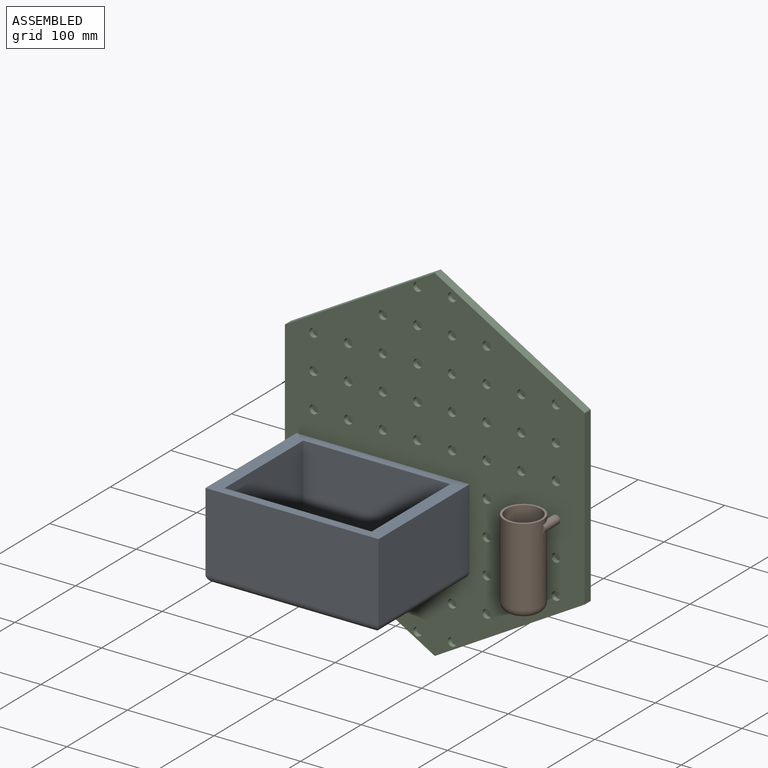
[diagram: assembled view]
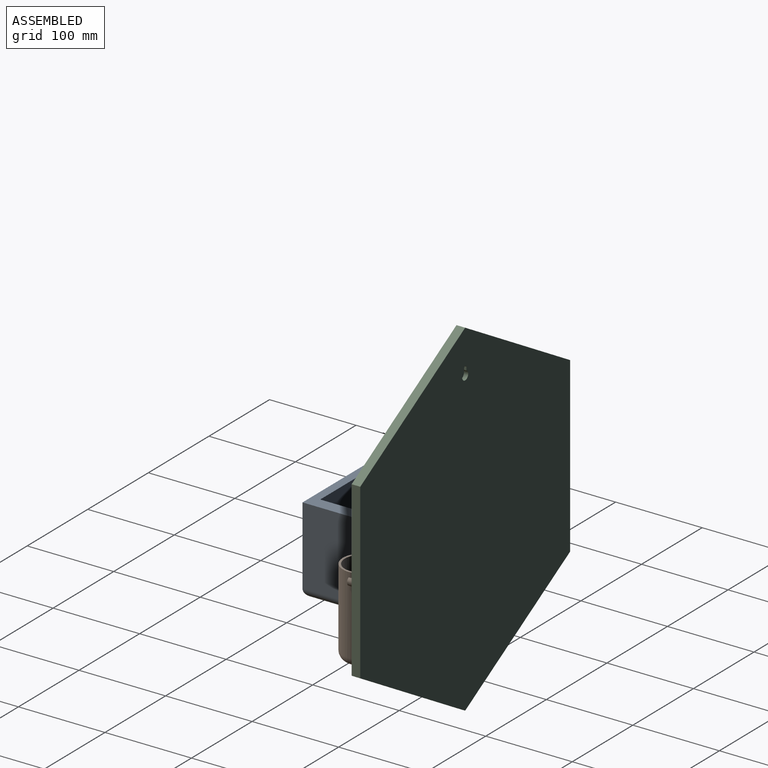
[diagram: assembled view, second angle]
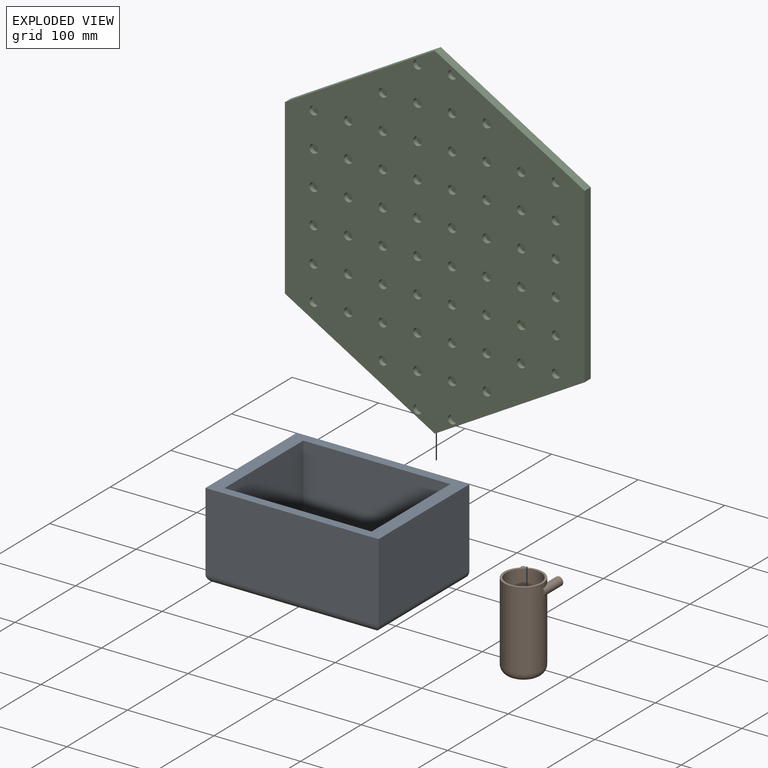
[diagram: exploded view]
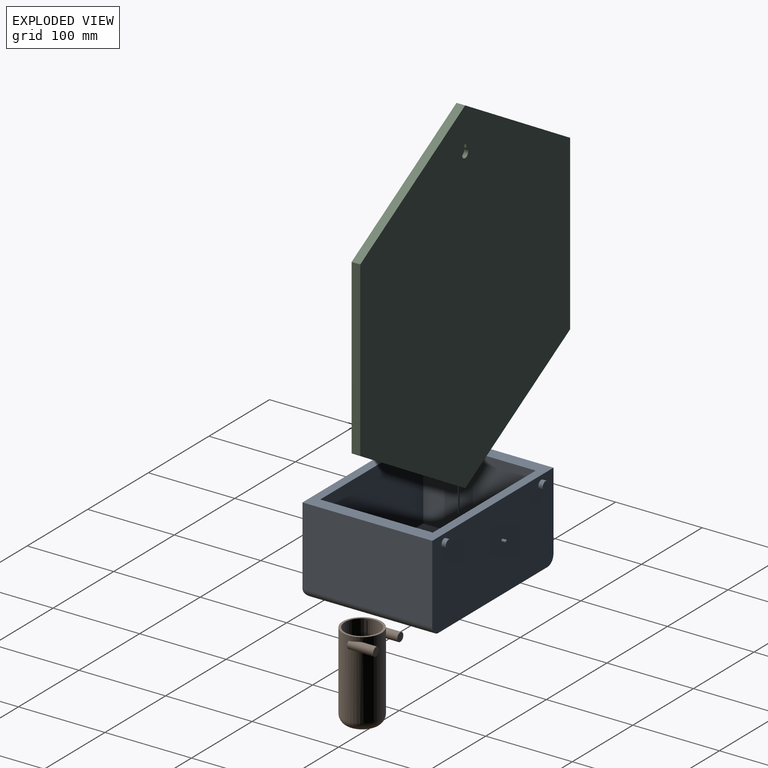
[diagram: exploded view, second angle]
ASSEMBLY  parts=3 mates=6
PART A: 20 faces, bbox 200x155x100 mm
  f0: plane 150x90mm, normal (-1,0,0), area 13500mm2, adj f3,f4,f5,f8
  f1: plane 180x140mm, normal (0,0,-1), area 25200mm2, adj f5,f6,f7,f8
  f2: plane 150x90mm, normal (1,0,0), area 13500mm2, adj f3,f4,f5,f6
  f3: plane 200x150mm, normal (0,0,1), area 7900mm2, adj f0,f2,f4,f5,f15,f16,f17,f18
  f4: plane 200x90mm, normal (0,-1,0), area 18000mm2, adj f0,f2,f3,f7
  f5: plane 200x100mm, normal (0,1,0), area 19791.4mm2, adj f0,f1,f2,f3,f6,f8,f9,f11
  f6: cylinder r=10mm len=150mm, axis (0,1,0), area 2299.1mm2, adj f1,f2,f5,f7
  f7: cylinder r=10mm len=200mm, axis (-1,0,0), area 3027.4mm2, adj f1,f4,f6,f8
  f8: cylinder r=10mm len=150mm, axis (0,1,0), area 2299.1mm2, adj f0,f1,f5,f7
  f9: cylinder r=5mm len=10mm, axis (0,-1,0), area 157.1mm2, adj f5,f10
  f10: plane 10x10mm, normal (0,1,0), area 78.5mm2, adj f9
  f11: cylinder r=1.65mm len=5mm, axis (0,-1,0), area 51.9mm2, adj f5,f12
  f12: plane 3.3x3.3mm, normal (0,1,0), area 8.6mm2, adj f11
  f13: cylinder r=5mm len=10mm, axis (0,-1,0), area 157.1mm2, adj f5,f14
  f14: plane 10x10mm, normal (0,1,0), area 78.5mm2, adj f13
  f15: plane 130x90mm, normal (-1,0,0), area 11700mm2, adj f3,f16,f18,f19
  f16: plane 170x90mm, normal (0,1,0), area 15300mm2, adj f3,f15,f17,f19
  f17: plane 130x90mm, normal (1,0,0), area 11700mm2, adj f3,f16,f18,f19
  f18: plane 170x90mm, normal (0,-1,0), area 15300mm2, adj f3,f15,f17,f19
  f19: plane 170x130mm, normal (0,0,1), area 22100mm2, adj f15,f16,f17,f18
PART B: 12 faces, bbox 50x54.4x100 mm
  f0: cylinder r=20mm len=90mm, axis (0,0,-1), area 11309.7mm2, adj f2,f4
  f1: cylinder r=22.5mm len=90mm, axis (0,0,-1), area 12391.1mm2, adj f2,f5,f7,f8,f10,f11
  f2: plane 45x45mm, normal (0,0,1), area 333.8mm2, adj f0,f1
  f3: plane 25x25mm, normal (0,0,-1), area 490.9mm2, adj f5
  f4: plane 40x40mm, normal (0,0,1), area 1256.6mm2, adj f0
  f5: torus R=12.5mm, axis (0,0,1), area 1862mm2, adj f1,f3
  f6: plane 10x10mm, normal (0,-1,0), area 78.5mm2, adj f8
  f7: plane 8.66x2.5mm, normal (0,1,0), area 15.4mm2, adj f1,f8
  f8: cylinder r=5mm len=30mm, axis (0,1,0), area 674.9mm2, adj f1,f6,f7
  f9: plane 10x10mm, normal (0,-1,0), area 78.5mm2, adj f11
  f10: plane 8.66x2.5mm, normal (0,1,0), area 15.4mm2, adj f1,f11
  f11: cylinder r=5mm len=30mm, axis (0,1,0), area 674.9mm2, adj f1,f9,f10
PART C: 133 faces, bbox 346.4x10x400 mm
  f0: plane 173.21x100mm, normal (0.5,0,0.87), area 2000mm2, adj f1,f5,f6,f7
  f1: plane 173.21x100mm, normal (-0.5,0,0.87), area 2000mm2, adj f0,f2,f6,f7
  f2: plane 200x10mm, normal (-1,0,0), area 2000mm2, adj f1,f3,f6,f7
  f3: plane 173.21x100mm, normal (-0.5,0,-0.87), area 2000mm2, adj f2,f4,f6,f7
  f4: plane 173.21x100mm, normal (0.5,0,-0.87), area 2000mm2, adj f3,f5,f6,f7
  f5: plane 200x10mm, normal (1,0,0), area 2000mm2, adj f0,f4,f6,f7
  f6: plane 400x346.41mm, normal (0,-1,0), area 99210.7mm2, adj f0,f1,f2,f3,f4,f5,f13,f15
  f7: plane 400x346.41mm, normal (0,1,0), area 103825.7mm2, adj f0,f1,f2,f3,f4,f5,f8,f9
  f8: cylinder r=5mm len=10mm, axis (0,1,0), area 136.5mm2, adj f7,f9,f11,f12
  f9: plane 5x3.42mm, normal (-1,0,0), area 17.1mm2, adj f7,f8,f10,f12
  f10: cylinder r=2mm len=5mm, axis (0,1,0), area 31.4mm2, adj f7,f9,f11,f12
  f11: plane 5x3.42mm, normal (1,0,0), area 17.1mm2, adj f7,f8,f10,f12
  f12: plane 15x10mm, normal (0,1,0), area 97.4mm2, adj f8,f9,f10,f11
  f13: cylinder r=5mm len=10mm, axis (0,-1,0), area 157.1mm2, adj f6,f14
  f14: plane 10x10mm, normal (0,-1,0), area 78.5mm2, adj f13
  f15: cylinder r=5mm len=10mm, axis (0,-1,0), area 157.1mm2, adj f6,f16
  f16: plane 10x10mm, normal (0,-1,0), area 78.5mm2, adj f15
  f17: cylinder r=5mm len=10mm, axis (0,-1,0), area 157.1mm2, adj f6,f18
  f18: plane 10x10mm, normal (0,-1,0), area 78.5mm2, adj f17
  f19: cylinder r=5mm len=10mm, axis (0,-1,0), area 157.1mm2, adj f6,f20
  f20: plane 10x10mm, normal (0,-1,0), area 78.5mm2, adj f19
  f21: cylinder r=5mm len=10mm, axis (0,-1,0), area 157.1mm2, adj f6,f22
  f22: plane 10x10mm, normal (0,-1,0), area 78.5mm2, adj f21
  f23: cylinder r=5mm len=10mm, axis (0,-1,0), area 157.1mm2, adj f6,f24
  f24: plane 10x10mm, normal (0,-1,0), area 78.5mm2, adj f23
  f25: cylinder r=5mm len=10mm, axis (0,-1,0), area 157.1mm2, adj f6,f26
  f26: plane 10x10mm, normal (0,-1,0), area 78.5mm2, adj f25
  f27: cylinder r=5mm len=10mm, axis (0,-1,0), area 157.1mm2, adj f6,f28
  f28: plane 10x10mm, normal (0,-1,0), area 78.5mm2, adj f27
  f29: cylinder r=5mm len=10mm, axis (0,-1,0), area 157.1mm2, adj f6,f30
  f30: plane 10x10mm, normal (0,-1,0), area 78.5mm2, adj f29
  f31: cylinder r=5mm len=10mm, axis (0,-1,0), area 157.1mm2, adj f6,f32
  f32: plane 10x10mm, normal (0,-1,0), area 78.5mm2, adj f31
  f33: cylinder r=5mm len=10mm, axis (0,-1,0), area 157.1mm2, adj f6,f34
  f34: plane 10x10mm, normal (0,-1,0), area 78.5mm2, adj f33
  f35: cylinder r=5mm len=10mm, axis (0,-1,0), area 157.1mm2, adj f6,f36
  f36: plane 10x10mm, normal (0,-1,0), area 78.5mm2, adj f35
  f37: cylinder r=5mm len=10mm, axis (0,-1,0), area 157.1mm2, adj f6,f38
  f38: plane 10x10mm, normal (0,-1,0), area 78.5mm2, adj f37
  f39: cylinder r=5mm len=10mm, axis (0,-1,0), area 157.1mm2, adj f6,f40
  f40: plane 10x10mm, normal (0,-1,0), area 78.5mm2, adj f39
  f41: cylinder r=5mm len=10mm, axis (0,-1,0), area 157.1mm2, adj f6,f42
  f42: plane 10x10mm, normal (0,-1,0), area 78.5mm2, adj f41
  f43: cylinder r=5mm len=10mm, axis (0,-1,0), area 157.1mm2, adj f6,f44
  f44: plane 10x10mm, normal (0,-1,0), area 78.5mm2, adj f43
  f45: cylinder r=5mm len=10mm, axis (0,-1,0), area 157.1mm2, adj f6,f46
  f46: plane 10x10mm, normal (0,-1,0), area 78.5mm2, adj f45
  f47: cylinder r=5mm len=10mm, axis (0,-1,0), area 157.1mm2, adj f6,f48
  f48: plane 10x10mm, normal (0,-1,0), area 78.5mm2, adj f47
  f49: cylinder r=5mm len=10mm, axis (0,-1,0), area 157.1mm2, adj f6,f50
  f50: plane 10x10mm, normal (0,-1,0), area 78.5mm2, adj f49
  f51: cylinder r=5mm len=10mm, axis (0,-1,0), area 157.1mm2, adj f6,f52
  f52: plane 10x10mm, normal (0,-1,0), area 78.5mm2, adj f51
  f53: cylinder r=5mm len=10mm, axis (0,-1,0), area 157.1mm2, adj f6,f54
  f54: plane 10x10mm, normal (0,-1,0), area 78.5mm2, adj f53
  f55: cylinder r=5mm len=10mm, axis (0,-1,0), area 157.1mm2, adj f6,f56
  f56: plane 10x10mm, normal (0,-1,0), area 78.5mm2, adj f55
  f57: cylinder r=5mm len=10mm, axis (0,-1,0), area 157.1mm2, adj f6,f58
  f58: plane 10x10mm, normal (0,-1,0), area 78.5mm2, adj f57
  f59: cylinder r=5mm len=10mm, axis (0,-1,0), area 157.1mm2, adj f6,f60
  f60: plane 10x10mm, normal (0,-1,0), area 78.5mm2, adj f59
  f61: cylinder r=5mm len=10mm, axis (0,-1,0), area 157.1mm2, adj f6,f62
  f62: plane 10x10mm, normal (0,-1,0), area 78.5mm2, adj f61
  f63: cylinder r=5mm len=10mm, axis (0,-1,0), area 157.1mm2, adj f6,f64
  f64: plane 10x10mm, normal (0,-1,0), area 78.5mm2, adj f63
  f65: cylinder r=5mm len=10mm, axis (0,-1,0), area 157.1mm2, adj f6,f66
  f66: plane 10x10mm, normal (0,-1,0), area 78.5mm2, adj f65
  f67: cylinder r=5mm len=10mm, axis (0,-1,0), area 157.1mm2, adj f6,f68
  f68: plane 10x10mm, normal (0,-1,0), area 78.5mm2, adj f67
  f69: cylinder r=5mm len=10mm, axis (0,-1,0), area 157.1mm2, adj f6,f70
  f70: plane 10x10mm, normal (0,-1,0), area 78.5mm2, adj f69
  f71: cylinder r=5mm len=10mm, axis (0,-1,0), area 157.1mm2, adj f6,f72
  f72: plane 10x10mm, normal (0,-1,0), area 78.5mm2, adj f71
  f73: cylinder r=5mm len=10mm, axis (0,-1,0), area 157.1mm2, adj f6,f74
  f74: plane 10x10mm, normal (0,-1,0), area 78.5mm2, adj f73
  f75: cylinder r=5mm len=10mm, axis (0,-1,0), area 157.1mm2, adj f6,f76
  f76: plane 10x10mm, normal (0,-1,0), area 78.5mm2, adj f75
  f77: cylinder r=5mm len=10mm, axis (0,-1,0), area 157.1mm2, adj f6,f78
  f78: plane 10x10mm, normal (0,-1,0), area 78.5mm2, adj f77
  f79: cylinder r=5mm len=10mm, axis (0,-1,0), area 157.1mm2, adj f6,f80
  f80: plane 10x10mm, normal (0,-1,0), area 78.5mm2, adj f79
  f81: cylinder r=5mm len=10mm, axis (0,-1,0), area 157.1mm2, adj f6,f82
  f82: plane 10x10mm, normal (0,-1,0), area 78.5mm2, adj f81
  f83: cylinder r=5mm len=10mm, axis (0,-1,0), area 157.1mm2, adj f6,f84
  f84: plane 10x10mm, normal (0,-1,0), area 78.5mm2, adj f83
  f85: cylinder r=5mm len=10mm, axis (0,-1,0), area 157.1mm2, adj f6,f86
  f86: plane 10x10mm, normal (0,-1,0), area 78.5mm2, adj f85
  f87: cylinder r=5mm len=10mm, axis (0,-1,0), area 157.1mm2, adj f6,f88
  f88: plane 10x10mm, normal (0,-1,0), area 78.5mm2, adj f87
  f89: cylinder r=5mm len=10mm, axis (0,-1,0), area 157.1mm2, adj f6,f90
  f90: plane 10x10mm, normal (0,-1,0), area 78.5mm2, adj f89
  f91: cylinder r=5mm len=10mm, axis (0,-1,0), area 157.1mm2, adj f6,f92
  f92: plane 10x10mm, normal (0,-1,0), area 78.5mm2, adj f91
  f93: cylinder r=5mm len=10mm, axis (0,-1,0), area 157.1mm2, adj f6,f94
  f94: plane 10x10mm, normal (0,-1,0), area 78.5mm2, adj f93
  f95: cylinder r=5mm len=10mm, axis (0,-1,0), area 157.1mm2, adj f6,f96
  f96: plane 10x10mm, normal (0,-1,0), area 78.5mm2, adj f95
  f97: cylinder r=5mm len=10mm, axis (0,-1,0), area 157.1mm2, adj f6,f98
  f98: plane 10x10mm, normal (0,-1,0), area 78.5mm2, adj f97
  f99: cylinder r=5mm len=10mm, axis (0,-1,0), area 157.1mm2, adj f6,f100
  f100: plane 10x10mm, normal (0,-1,0), area 78.5mm2, adj f99
  f101: cylinder r=5mm len=10mm, axis (0,-1,0), area 157.1mm2, adj f6,f102
  f102: plane 10x10mm, normal (0,-1,0), area 78.5mm2, adj f101
  f103: cylinder r=5mm len=10mm, axis (0,-1,0), area 157.1mm2, adj f6,f104
  f104: plane 10x10mm, normal (0,-1,0), area 78.5mm2, adj f103
  f105: cylinder r=5mm len=10mm, axis (0,-1,0), area 157.1mm2, adj f6,f106
  f106: plane 10x10mm, normal (0,-1,0), area 78.5mm2, adj f105
  f107: cylinder r=5mm len=10mm, axis (0,-1,0), area 157.1mm2, adj f6,f108
  f108: plane 10x10mm, normal (0,-1,0), area 78.5mm2, adj f107
  f109: cylinder r=5mm len=10mm, axis (0,-1,0), area 157.1mm2, adj f6,f110
  f110: plane 10x10mm, normal (0,-1,0), area 78.5mm2, adj f109
  f111: cylinder r=5mm len=10mm, axis (0,-1,0), area 157.1mm2, adj f6,f112
  f112: plane 10x10mm, normal (0,-1,0), area 78.5mm2, adj f111
  f113: cylinder r=5mm len=10mm, axis (0,-1,0), area 157.1mm2, adj f6,f114
  f114: plane 10x10mm, normal (0,-1,0), area 78.5mm2, adj f113
  f115: cylinder r=5mm len=10mm, axis (0,-1,0), area 157.1mm2, adj f6,f116
  f116: plane 10x10mm, normal (0,-1,0), area 78.5mm2, adj f115
  f117: cylinder r=5mm len=10mm, axis (0,-1,0), area 157.1mm2, adj f6,f118
  f118: plane 10x10mm, normal (0,-1,0), area 78.5mm2, adj f117
  f119: cylinder r=5mm len=10mm, axis (0,-1,0), area 157.1mm2, adj f6,f120
  f120: plane 10x10mm, normal (0,-1,0), area 78.5mm2, adj f119
  f121: cylinder r=5mm len=10mm, axis (0,-1,0), area 157.1mm2, adj f6,f122
  f122: plane 10x10mm, normal (0,-1,0), area 78.5mm2, adj f121
  f123: cylinder r=5mm len=10mm, axis (0,-1,0), area 157.1mm2, adj f6,f124
  f124: plane 10x10mm, normal (0,-1,0), area 78.5mm2, adj f123
  f125: cylinder r=5mm len=10mm, axis (0,-1,0), area 157.1mm2, adj f6,f126
  f126: plane 10x10mm, normal (0,-1,0), area 78.5mm2, adj f125
  f127: cylinder r=5mm len=10mm, axis (0,-1,0), area 157.1mm2, adj f6,f128
  f128: plane 10x10mm, normal (0,-1,0), area 78.5mm2, adj f127
  f129: cylinder r=5mm len=10mm, axis (0,-1,0), area 157.1mm2, adj f6,f130
  f130: plane 10x10mm, normal (0,-1,0), area 78.5mm2, adj f129
  f131: cylinder r=5mm len=10mm, axis (0,-1,0), area 157.1mm2, adj f6,f132
  f132: plane 10x10mm, normal (0,-1,0), area 78.5mm2, adj f131
PLACE A t=(-80.98,51.61,43.09)mm
PLACE B rot(axis=(0,0,-1),180deg) t=(99.02,26.61,-6.91)mm
PLACE C t=(-20.98,61.61,103.09)mm fixed
MATE cylindrical A.f13 <-> C.f115  axis (0,1,0) through (-160.98,56.61,83.09)mm
MATE cylindrical A.f9 <-> C.f49  axis (0,1,0) through (-0.98,56.61,83.09)mm
MATE planar C.f117 <-> A.f13  axis (0,-1,0) through (-160.98,56.61,163.09)mm
MATE planar B.f8 <-> C.f65  axis (0,1,0) through (119.02,56.61,83.09)mm
MATE cylindrical B.f11 <-> C.f67  axis (0,1,0) through (79.02,56.61,83.09)mm
MATE cylindrical B.f8 <-> C.f65  axis (0,1,0) through (119.02,56.61,83.09)mm
